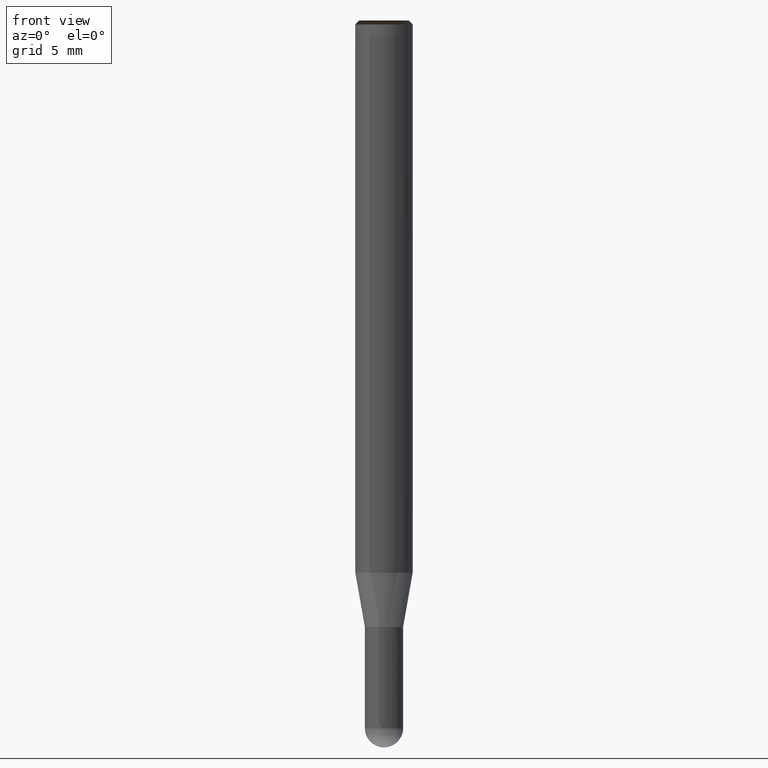
[diagram: clean part render]
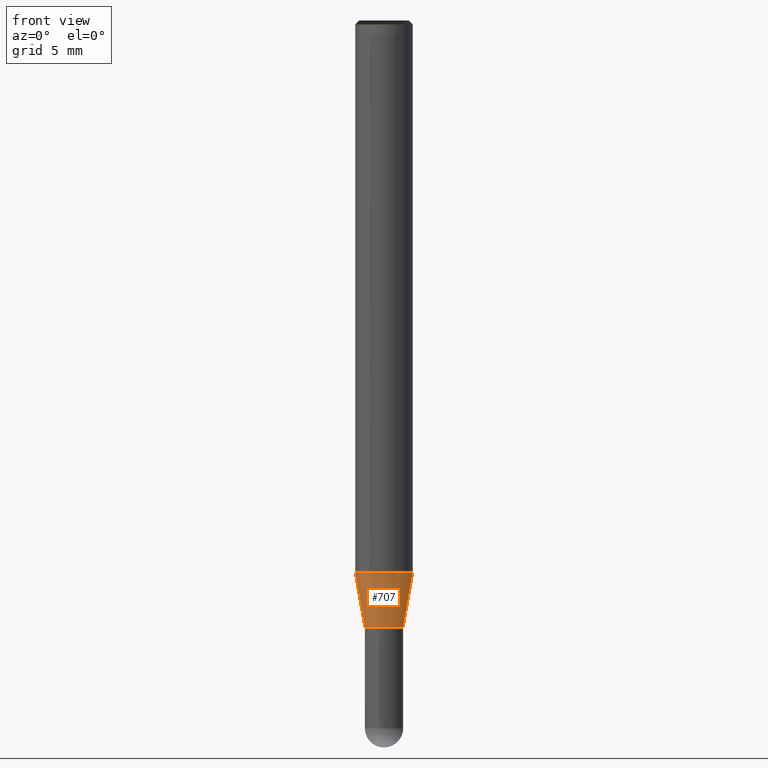
[diagram: same view with one face highlighted and labeled with its STEP entity id]
A machine part, front view. The second image highlights one B-rep face of the part: STEP entity #707.
In plain terms, the highlighted face is a freeform B-spline surface patch.
Its self-contained STEP definition (entity closure, byte-faithful):
#366=CARTESIAN_POINT('',(1.0,0.0,-3.0));
#370=CARTESIAN_POINT('',(-1.0,0.0,-3.0));
#371=CARTESIAN_POINT('',(1.5,0.0,-0.164359090191));
#375=CARTESIAN_POINT('',(-1.5,0.0,-0.164359090191));
#392=CARTESIAN_POINT('',(-1.0,-1.0,-3.0));
#393=CARTESIAN_POINT('',(0.0,-1.0,-3.0));
#394=CARTESIAN_POINT('',(1.0,-1.0,-3.0));
#395=CARTESIAN_POINT('',(-1.5,-1.5,-0.164359090191));
#396=CARTESIAN_POINT('',(0.0,-1.5,-0.164359090191));
#397=CARTESIAN_POINT('',(1.5,-1.5,-0.164359090191));
#688=(
BOUNDED_SURFACE()
B_SPLINE_SURFACE(1,2,(
(#370,#392,#393,#394,#366),
(#375,#395,#396,#397,#371)
), .UNSPECIFIED.,.F.,.F.,.F.)
B_SPLINE_SURFACE_WITH_KNOTS((2,2),(3,2,3),(
0.0,1.0),(
0.0,0.5,1.0), .UNSPECIFIED.)
GEOMETRIC_REPRESENTATION_ITEM()
RATIONAL_B_SPLINE_SURFACE(((1.0,0.707106781187,1.0,0.707106781187,1.0),
(1.0,0.707106781187,1.0,0.707106781187,1.0)
))
REPRESENTATION_ITEM('')
SURFACE()
);
#689=(
BOUNDED_CURVE()
B_SPLINE_CURVE(2,(#366,#394,#393,#392,#370),.UNSPECIFIED.,.F.,.F.)
B_SPLINE_CURVE_WITH_KNOTS((3,2,3),
(0.0,0.5,1.0),.UNSPECIFIED.)
CURVE()
GEOMETRIC_REPRESENTATION_ITEM()
RATIONAL_B_SPLINE_CURVE((1.0,0.707106781187,1.0,0.707106781187,1.0))
REPRESENTATION_ITEM('')
);
#690=(
BOUNDED_CURVE()
B_SPLINE_CURVE(1,(#370,#375),.UNSPECIFIED.,.F.,.F.)
B_SPLINE_CURVE_WITH_KNOTS((2,2),
(0.0,1.0),.UNSPECIFIED.)
CURVE()
GEOMETRIC_REPRESENTATION_ITEM()
RATIONAL_B_SPLINE_CURVE((1.0,1.0))
REPRESENTATION_ITEM('')
);
#691=(
BOUNDED_CURVE()
B_SPLINE_CURVE(2,(#375,#395,#396,#397,#371),.UNSPECIFIED.,.F.,.F.)
B_SPLINE_CURVE_WITH_KNOTS((3,2,3),
(0.0,0.5,1.0),.UNSPECIFIED.)
CURVE()
GEOMETRIC_REPRESENTATION_ITEM()
RATIONAL_B_SPLINE_CURVE((1.0,0.707106781187,1.0,0.707106781187,1.0))
REPRESENTATION_ITEM('')
);
#692=(
BOUNDED_CURVE()
B_SPLINE_CURVE(1,(#371,#366),.UNSPECIFIED.,.F.,.F.)
B_SPLINE_CURVE_WITH_KNOTS((2,2),
(0.0,1.0),.UNSPECIFIED.)
CURVE()
GEOMETRIC_REPRESENTATION_ITEM()
RATIONAL_B_SPLINE_CURVE((1.0,1.0))
REPRESENTATION_ITEM('')
);
#693=VERTEX_POINT('',#366);
#694=VERTEX_POINT('',#370);
#695=VERTEX_POINT('',#371);
#696=VERTEX_POINT('',#375);
#697=EDGE_CURVE('',#693,#694,#689,.T.);
#698=EDGE_CURVE('',#694,#696,#690,.T.);
#699=EDGE_CURVE('',#696,#695,#691,.T.);
#700=EDGE_CURVE('',#695,#693,#692,.T.);
#701=ORIENTED_EDGE('',*,*,#697,.T.);
#702=ORIENTED_EDGE('',*,*,#698,.T.);
#703=ORIENTED_EDGE('',*,*,#699,.T.);
#704=ORIENTED_EDGE('',*,*,#700,.T.);
#705=EDGE_LOOP('',(#701,#702,#703,#704));
#706=FACE_OUTER_BOUND('',#705,.T.);
#707=ADVANCED_FACE('',(#706),#688,.T.);